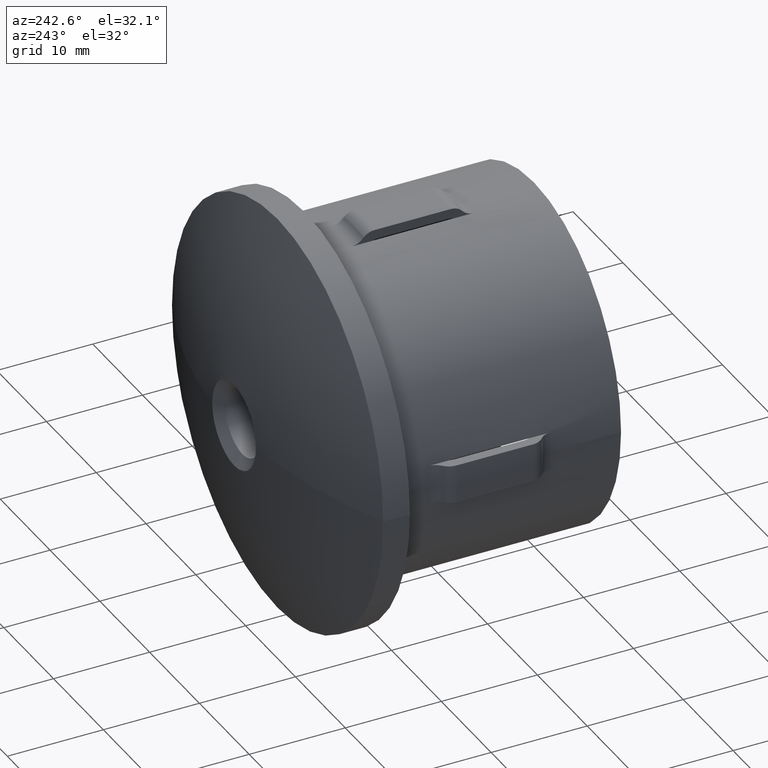
[diagram: clean part render]
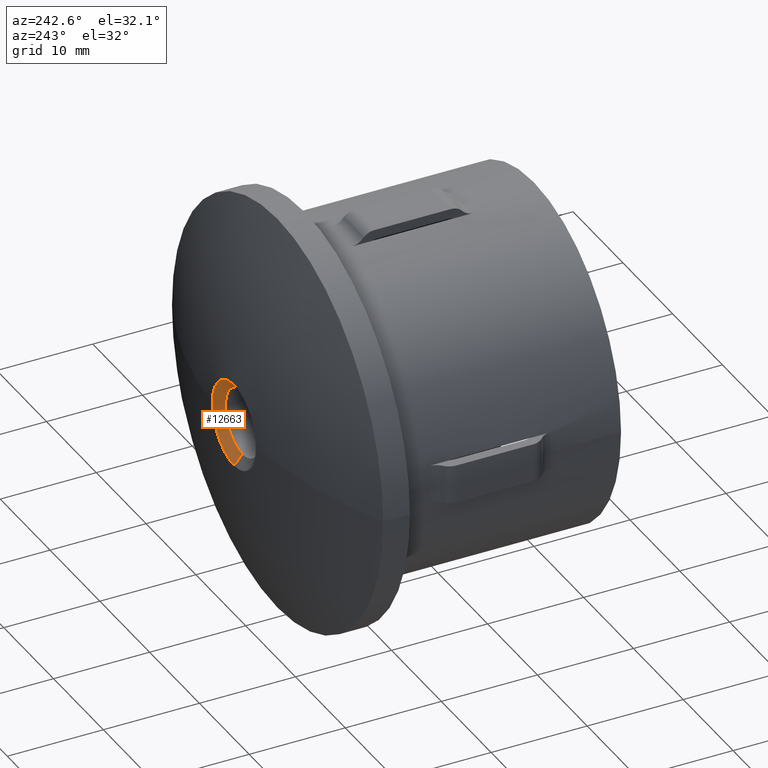
[diagram: same view with one face highlighted and labeled with its STEP entity id]
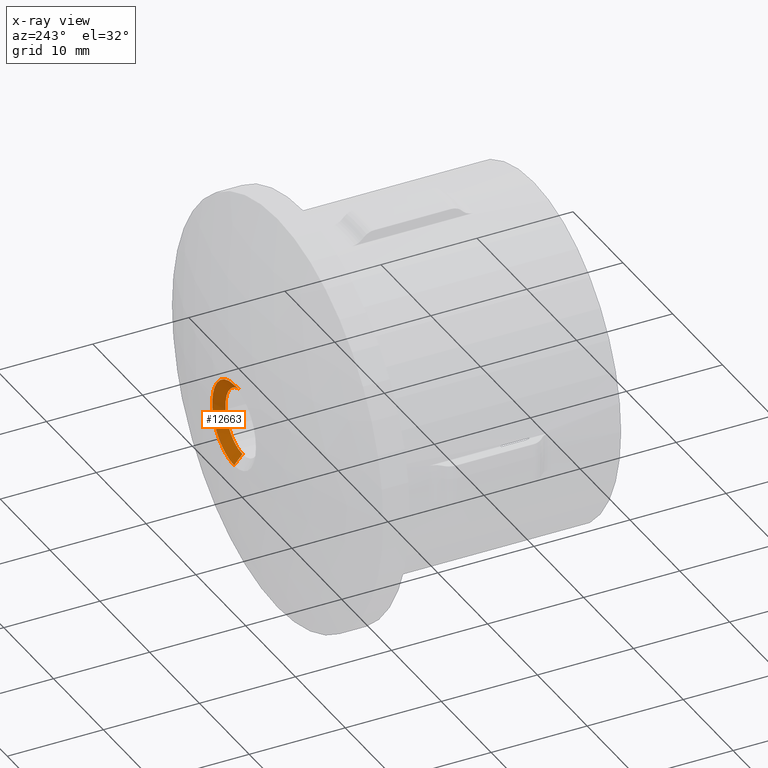
[diagram: x-ray of the same camera — body ghosted, the highlighted face saturated]
A machine part, auxiliary view. The second image highlights one B-rep face of the part: STEP entity #12663.
The next image is the same camera in x-ray: the body ghosted, the highlighted face saturated — about 0% of this face is hidden behind the body in this view.
In plain terms, the highlighted conical surface has half-angle 48.899 deg.
Its self-contained STEP definition (entity closure, byte-faithful):
#369 = DIRECTION ( 'NONE',  ( -0.0000000000000000000, -1.000000000000000000, -0.0000000000000000000 ) ) ;
#444 = DIRECTION ( 'NONE',  ( 0.0000000000000000000, 1.000000000000000000, 0.0000000000000000000 ) ) ;
#1032 = ORIENTED_EDGE ( 'NONE', *, *, #12020, .T. ) ;
#1296 = EDGE_CURVE ( 'NONE', #1707, #11757, #7841, .T. ) ;
#1707 = VERTEX_POINT ( 'NONE', #11163 ) ;
#1780 = DIRECTION ( 'NONE',  ( 0.0000000000000000000, 0.0000000000000000000, 1.000000000000000000 ) ) ;
#2282 = CARTESIAN_POINT ( 'NONE',  ( 0.0000000000000000000, 31.20714974177100100, 4.387235416614920800 ) ) ;
#2688 = DIRECTION ( 'NONE',  ( -0.0000000000000000000, -1.000000000000000000, -0.0000000000000000000 ) ) ;
#3330 = VERTEX_POINT ( 'NONE', #2282 ) ;
#3656 = EDGE_CURVE ( 'NONE', #11757, #7745, #7812, .T. ) ;
#3727 = FACE_OUTER_BOUND ( 'NONE', #9084, .T. ) ;
#4516 = VECTOR ( 'NONE', #11028, 1000.000000000000000 ) ;
#4792 = VERTEX_POINT ( 'NONE', #9685 ) ;
#5202 = DIRECTION ( 'NONE',  ( 0.0000000000000000000, 0.0000000000000000000, -1.000000000000000000 ) ) ;
#5490 = DIRECTION ( 'NONE',  ( 0.0000000000000000000, 0.0000000000000000000, -1.000000000000000000 ) ) ;
#5614 = CARTESIAN_POINT ( 'NONE',  ( 0.0000000000000000000, 30.34590275156805500, 0.0000000000000000000 ) ) ;
#6011 = DIRECTION ( 'NONE',  ( 0.0000000000000000000, 0.0000000000000000000, 1.000000000000000000 ) ) ;
#6116 = CARTESIAN_POINT ( 'NONE',  ( 0.0000000000000000000, 30.34590275156805500, 0.0000000000000000000 ) ) ;
#6132 = AXIS2_PLACEMENT_3D ( 'NONE', #6116, #11161, #6011 ) ;
#7074 = LINE ( 'NONE', #8982, #15511 ) ;
#7430 = ORIENTED_EDGE ( 'NONE', *, *, #3656, .F. ) ;
#7542 = AXIS2_PLACEMENT_3D ( 'NONE', #7823, #369, #5490 ) ;
#7745 = VERTEX_POINT ( 'NONE', #15445 ) ;
#7812 = CIRCLE ( 'NONE', #7961, 4.387235416614918100 ) ;
#7823 = CARTESIAN_POINT ( 'NONE',  ( -4.200538521075421400E-015, 31.20714974177100100, 0.0000000000000000000 ) ) ;
#7841 = LINE ( 'NONE', #12266, #4516 ) ;
#7961 = AXIS2_PLACEMENT_3D ( 'NONE', #12697, #2688, #5202 ) ;
#8112 = CARTESIAN_POINT ( 'NONE',  ( 5.372813810063367200E-016, 31.20714974177100100, -4.387235416614920800 ) ) ;
#8316 = EDGE_CURVE ( 'NONE', #7745, #3330, #8950, .T. ) ;
#8774 = ORIENTED_EDGE ( 'NONE', *, *, #1296, .F. ) ;
#8823 = DIRECTION ( 'NONE',  ( 0.0000000000000000000, 0.6573867949412323100, 0.7535533171825961100 ) ) ;
#8950 = CIRCLE ( 'NONE', #7542, 4.387235416614918100 ) ;
#8982 = CARTESIAN_POINT ( 'NONE',  ( 0.0000000000000000000, 30.34590275156805500, 3.399999999999996800 ) ) ;
#9084 = EDGE_LOOP ( 'NONE', ( #8774, #15019, #1032, #15399, #7430 ) ) ;
#9685 = CARTESIAN_POINT ( 'NONE',  ( 4.163799117100997100E-016, 30.34590275156805500, 3.399999999999996800 ) ) ;
#10135 = EDGE_CURVE ( 'NONE', #4792, #1707, #12827, .T. ) ;
#11028 = DIRECTION ( 'NONE',  ( 9.228366578745365000E-017, 0.6573867949412323100, -0.7535533171825961100 ) ) ;
#11161 = DIRECTION ( 'NONE',  ( 0.0000000000000000000, 1.000000000000000000, 0.0000000000000000000 ) ) ;
#11163 = CARTESIAN_POINT ( 'NONE',  ( 0.0000000000000000000, 30.34590275156805500, -3.399999999999996800 ) ) ;
#11757 = VERTEX_POINT ( 'NONE', #8112 ) ;
#12020 = EDGE_CURVE ( 'NONE', #4792, #3330, #7074, .T. ) ;
#12266 = CARTESIAN_POINT ( 'NONE',  ( 4.163799117100997100E-016, 30.34590275156805500, -3.399999999999996800 ) ) ;
#12663 = ADVANCED_FACE ( 'NONE', ( #3727 ), #13130, .F. ) ;
#12697 = CARTESIAN_POINT ( 'NONE',  ( -4.200538521075421400E-015, 31.20714974177100100, 0.0000000000000000000 ) ) ;
#12827 = CIRCLE ( 'NONE', #15343, 3.399999999999996800 ) ;
#13130 = CONICAL_SURFACE ( 'NONE', #6132, 3.399999999999996800, 0.8534506780768756900 ) ;
#15019 = ORIENTED_EDGE ( 'NONE', *, *, #10135, .F. ) ;
#15343 = AXIS2_PLACEMENT_3D ( 'NONE', #5614, #444, #1780 ) ;
#15399 = ORIENTED_EDGE ( 'NONE', *, *, #8316, .F. ) ;
#15445 = CARTESIAN_POINT ( 'NONE',  ( 4.387235416614914600, 31.20714974177100100, 0.0000000000000000000 ) ) ;
#15511 = VECTOR ( 'NONE', #8823, 1000.000000000000000 ) ;